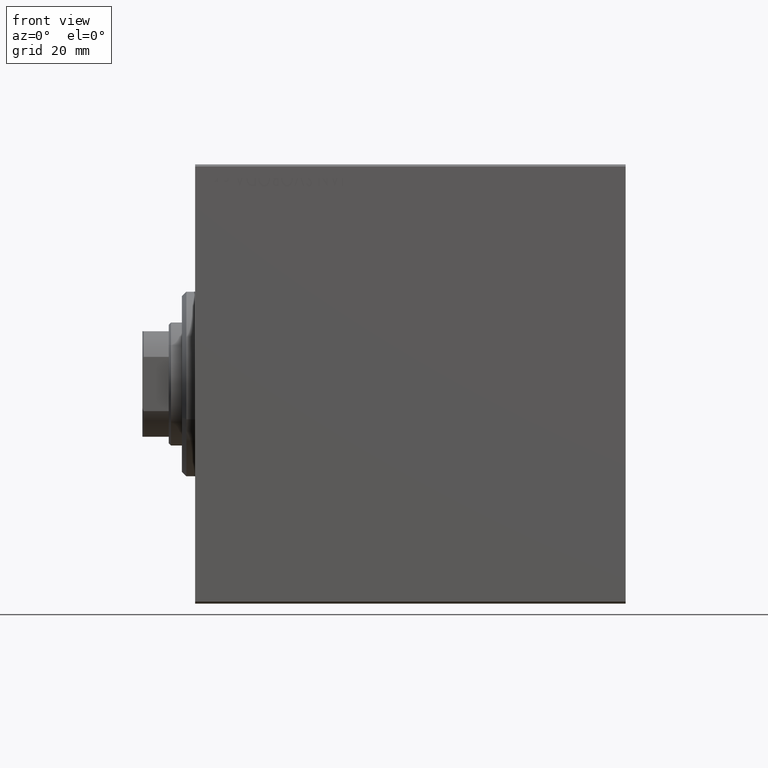
[diagram: clean part render]
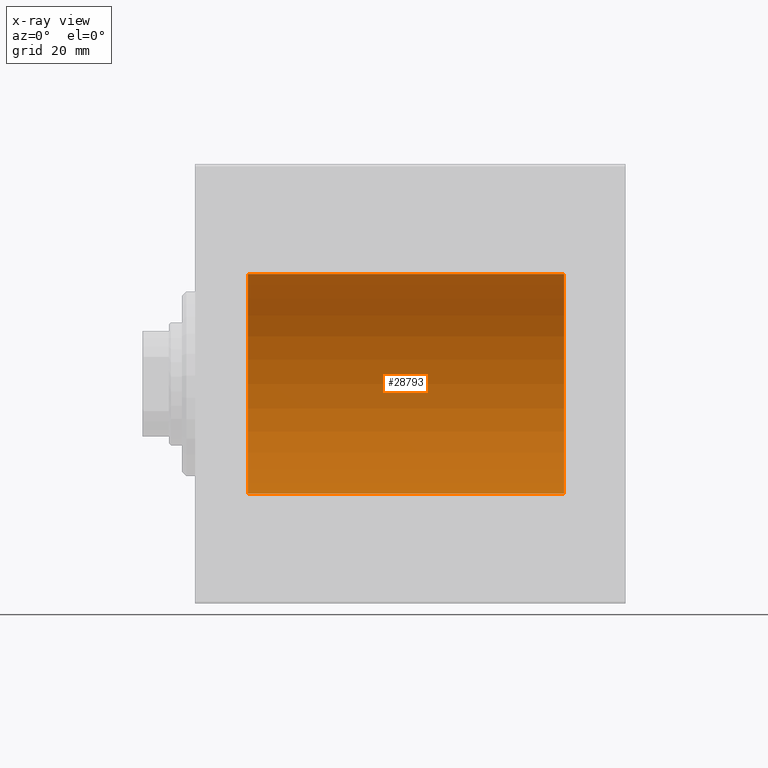
[diagram: x-ray — body ghosted, one internal face saturated and labeled with its STEP entity id]
A machine part, front view, then the same camera in x-ray: the body is ghosted and one INTERNAL B-rep face — a face not visible from any outside direction — is saturated and labeled: STEP entity #28793.
In plain terms, the highlighted cylindrical surface (partial cylindrical patch) has radius 25 mm, axis along (-1, -0, -0).
Its self-contained STEP definition (entity closure, byte-faithful):
#218 = CIRCLE ( 'NONE', #43232, 25.00000000000000000 ) ;
#387 = CARTESIAN_POINT ( 'NONE',  ( 11.99999999999999645, 3.061616997868382254E-15, -25.00000000000000000 ) ) ;
#540 = CARTESIAN_POINT ( 'NONE',  ( 84.00000000000000000, 3.061616997868382254E-15, -25.00000000000000000 ) ) ;
#2190 = EDGE_CURVE ( 'NONE', #34074, #39042, #16180, .T. ) ;
#2777 = AXIS2_PLACEMENT_3D ( 'NONE', #4277, #21267, #4068 ) ;
#2993 = ORIENTED_EDGE ( 'NONE', *, *, #3030, .F. ) ;
#3030 = EDGE_CURVE ( 'NONE', #13044, #39042, #30801, .T. ) ;
#4068 = DIRECTION ( 'NONE',  ( 0.000000000000000000, 0.000000000000000000, 1.000000000000000000 ) ) ;
#4277 = CARTESIAN_POINT ( 'NONE',  ( 11.99999999999999645, 0.000000000000000000, 0.000000000000000000 ) ) ;
#4327 = DIRECTION ( 'NONE',  ( -1.000000000000000000, 0.000000000000000000, 0.000000000000000000 ) ) ;
#4382 = VECTOR ( 'NONE', #8025, 1000.000000000000000 ) ;
#6191 = CARTESIAN_POINT ( 'NONE',  ( 11.99999999999999645, 0.000000000000000000, 25.00000000000000000 ) ) ;
#7067 = CYLINDRICAL_SURFACE ( 'NONE', #12025, 25.00000000000000000 ) ;
#8025 = DIRECTION ( 'NONE',  ( -1.000000000000000000, -0.000000000000000000, -0.000000000000000000 ) ) ;
#8951 = CARTESIAN_POINT ( 'NONE',  ( 84.00000000000000000, 0.000000000000000000, 25.00000000000000000 ) ) ;
#10343 = CARTESIAN_POINT ( 'NONE',  ( 84.00000000000000000, 3.061616997868382254E-15, -25.00000000000000000 ) ) ;
#11181 = EDGE_CURVE ( 'NONE', #41056, #13044, #218, .T. ) ;
#12025 = AXIS2_PLACEMENT_3D ( 'NONE', #13252, #36678, #34013 ) ;
#12053 = DIRECTION ( 'NONE',  ( -1.000000000000000000, -0.000000000000000000, -0.000000000000000000 ) ) ;
#13044 = VERTEX_POINT ( 'NONE', #10343 ) ;
#13252 = CARTESIAN_POINT ( 'NONE',  ( 84.00000000000000000, 0.000000000000000000, 0.000000000000000000 ) ) ;
#14260 = ORIENTED_EDGE ( 'NONE', *, *, #11181, .F. ) ;
#14484 = EDGE_LOOP ( 'NONE', ( #2993, #14260, #35470, #35916 ) ) ;
#16025 = EDGE_CURVE ( 'NONE', #41056, #34074, #37972, .T. ) ;
#16180 = CIRCLE ( 'NONE', #2777, 25.00000000000000000 ) ;
#18289 = CARTESIAN_POINT ( 'NONE',  ( 84.00000000000000000, 0.000000000000000000, 25.00000000000000000 ) ) ;
#21267 = DIRECTION ( 'NONE',  ( -1.000000000000000000, 0.000000000000000000, 0.000000000000000000 ) ) ;
#24204 = CARTESIAN_POINT ( 'NONE',  ( 84.00000000000000000, 0.000000000000000000, 0.000000000000000000 ) ) ;
#24625 = DIRECTION ( 'NONE',  ( 0.000000000000000000, 0.000000000000000000, 1.000000000000000000 ) ) ;
#28670 = VECTOR ( 'NONE', #12053, 1000.000000000000000 ) ;
#28793 = ADVANCED_FACE ( 'NONE', ( #30267 ), #7067, .F. ) ;
#30267 = FACE_OUTER_BOUND ( 'NONE', #14484, .T. ) ;
#30801 = LINE ( 'NONE', #540, #4382 ) ;
#34013 = DIRECTION ( 'NONE',  ( 0.000000000000000000, 0.000000000000000000, 1.000000000000000000 ) ) ;
#34074 = VERTEX_POINT ( 'NONE', #6191 ) ;
#35470 = ORIENTED_EDGE ( 'NONE', *, *, #16025, .T. ) ;
#35916 = ORIENTED_EDGE ( 'NONE', *, *, #2190, .T. ) ;
#36678 = DIRECTION ( 'NONE',  ( -1.000000000000000000, -0.000000000000000000, -0.000000000000000000 ) ) ;
#37972 = LINE ( 'NONE', #8951, #28670 ) ;
#39042 = VERTEX_POINT ( 'NONE', #387 ) ;
#41056 = VERTEX_POINT ( 'NONE', #18289 ) ;
#43232 = AXIS2_PLACEMENT_3D ( 'NONE', #24204, #4327, #24625 ) ;